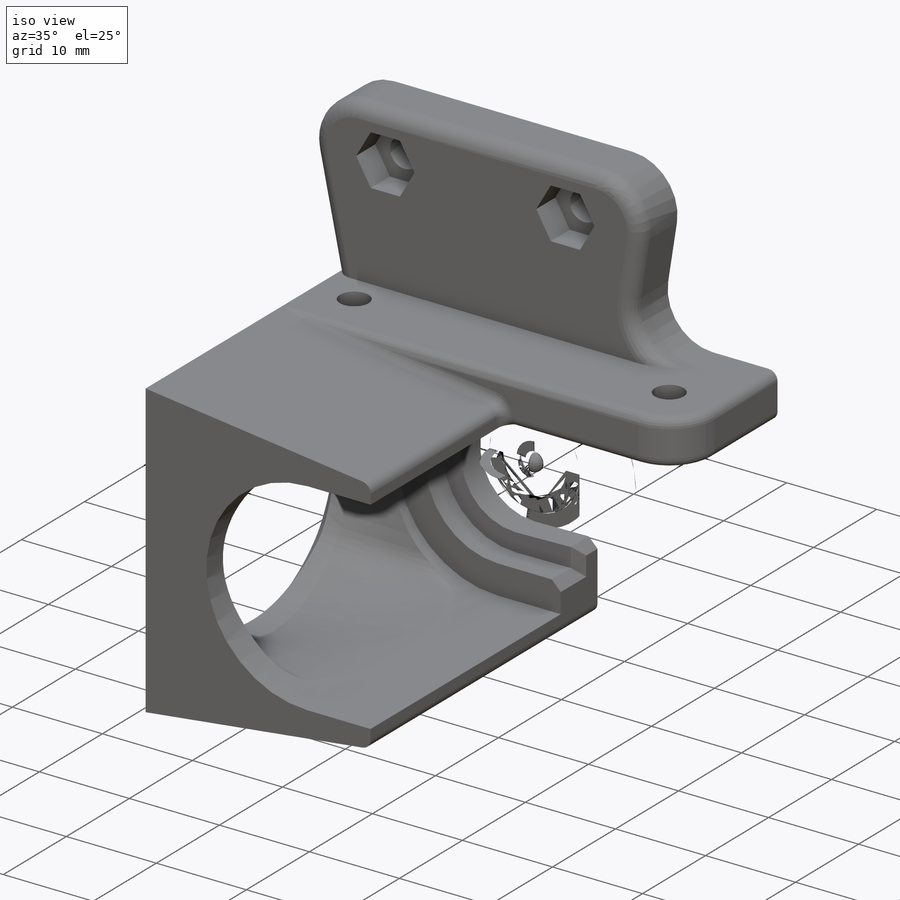
[diagram: iso view]
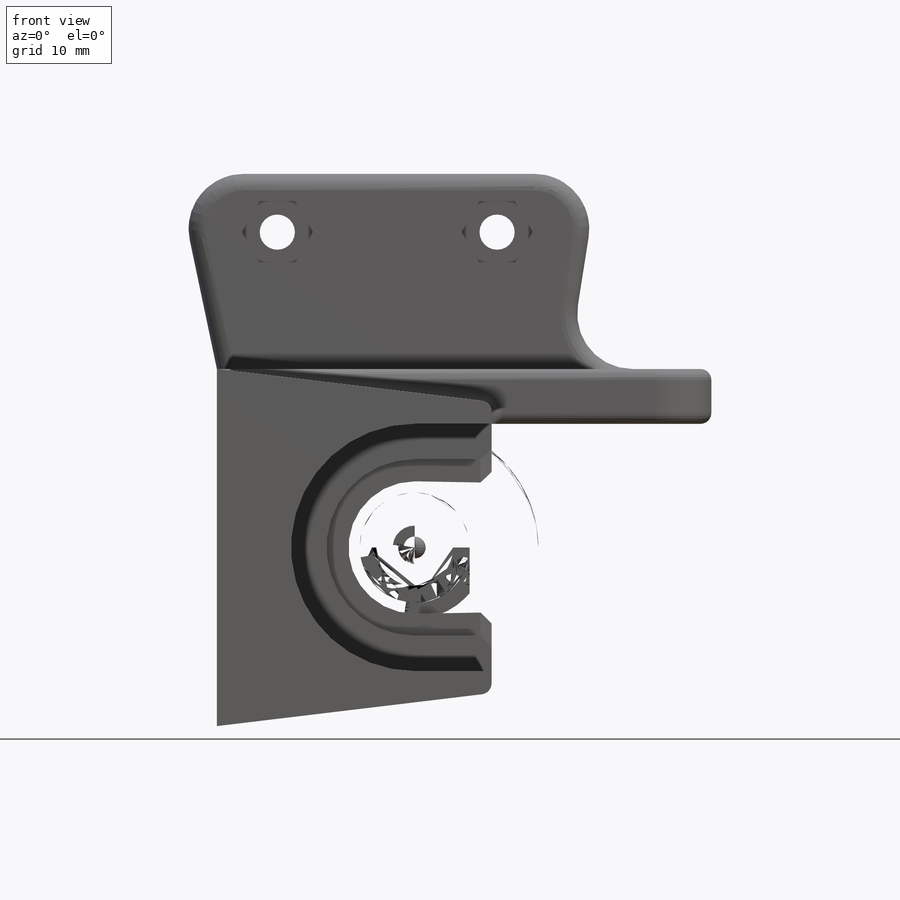
[diagram: front view]
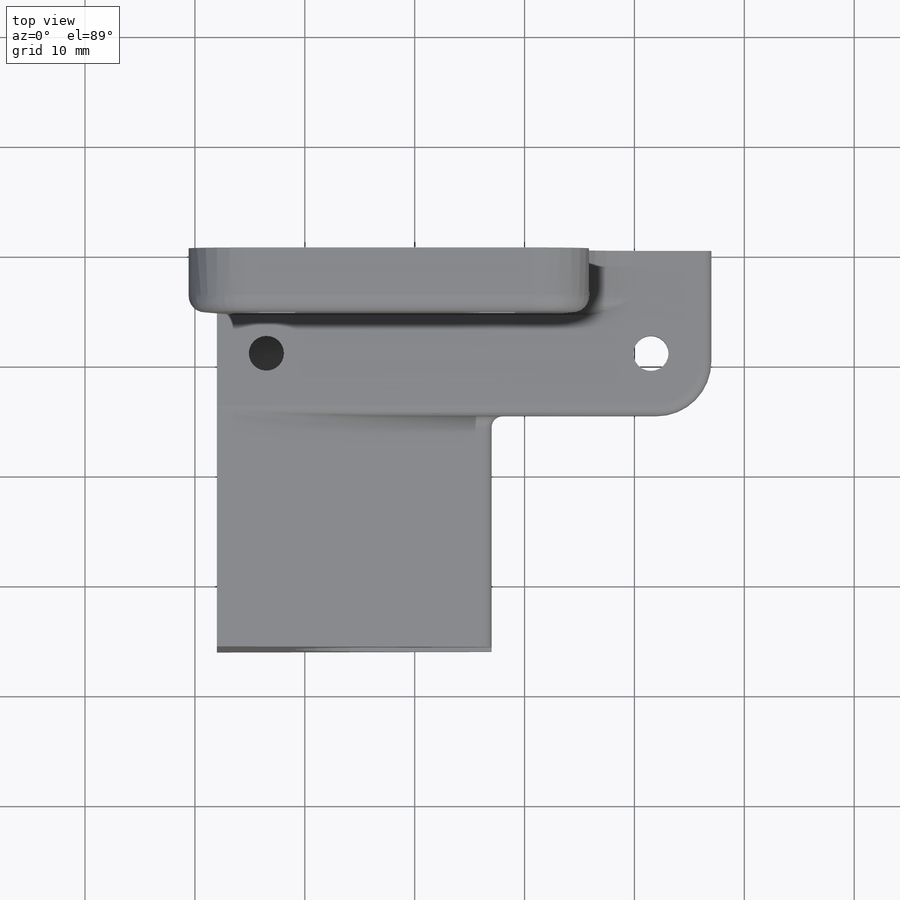
[diagram: top view]
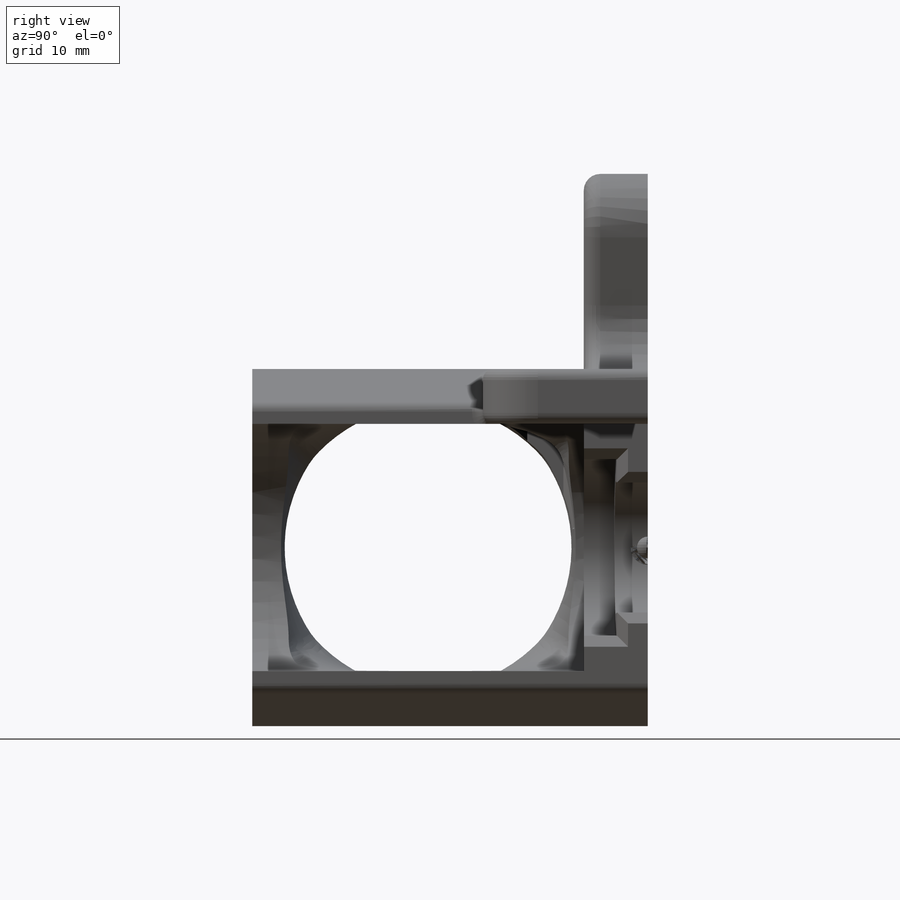
[diagram: right view]
SOLIDWORKS PART (.sldprt)
format: sldprt  version: not decoded by parser v0  size: 1,478,144 bytes
history: native  units: mm
features: sketch x11, extrude x5, chamfer x4, fillet x4, cut_extrude x3, material x1 (+13 scaffold rows collapsed)
feature tree (41):
  scaffold x13  (default folders/planes/origin — collapsed)
  material  "ABS"
  sketch  "Sketch2"  dims[c1.D1=12.05mm c1.D2=16.05mm c1.D3=3.2mm c1.D4=12.05mm c1.D5=3.2mm c1.D6=3.2mm c1.D8=6.0mm c1.D10=5.6mm c2.D6=3.2mm c2.D12=3.2mm c2.D13=22.5mm c2.D7=6.025mm c2.D14=6.025mm c2.D21=2.0mm c2.D4=28.7mm c2.D5=20.0mm c3.D6=12.5mm c3.D7=5.0mm c3.D8=5.0mm c3.D9=5.0mm c4.D7=5.0mm c4.D9=2.0mm c5.D7=6.0mm c5.D10=~3.910987mm c5.D6=5.0mm c5.D8=5.0mm c5.D11=6.0mm c5.D12=2.25mm c6.D6=2.5mm c6.D12=12.5mm c6.D14=6.0mm c6.D15=5.0mm c6.D16=15.0mm c6.D17=27.0mm c7.D14=6.0mm c7.D8=6.0mm c7.D11=6.0mm c7.D7=14.0mm c8.D14=18.0mm c8.D18=2.0mm c8.D19=~5.516136mm c9.D19=70.0deg c9.D20=5.0mm c9.D18=3.0mm c10.D19=1.5mm c10.D20=4.0mm c10.D7=7.0mm c10.D9=2.0mm c10.D16=11.8mm]
  extrude  "Boss-Extrude1"  Depth=2.8mm
  extrude  "Boss-Extrude2"  [1 undecoded]
  sketch  "Sketch2<4>"  dims[D1=5.825mm]
  extrude  "Boss-Extrude3"  [1 undecoded]
  sketch  "Sketch2<5>"  dims[D1=15.0mm]
  extrude  "Boss-Extrude4"  [1 undecoded]
  sketch  "Sketch2<6>"  dims[D1=36.0mm]
  chamfer  "Chamfer1"  Distance=0.5mm Angle=15deg
  chamfer  "Chamfer2"  Distance=1mm Angle=45deg
  fillet  "Fillet4"  Radius=5mm
  sketch  "Sketch3"  dims[c1.D1=26.0mm c1.D2=26.0mm c1.D5=2.8mm c2.D2=20.0mm c2.D3=12.0mm c2.D4=12.0mm]
  fillet  "Fillet6"  Radius=1mm
  fillet  "Fillet7"  Radius=1mm
  sketch  "Sketch4"  dims[D3=2.0mm D1=2.0mm D2=22.5mm D4=18.5mm]
  fillet  "Fillet8"  Radius=1.5mm
  sketch  "Sketch5"  dims[c1.D1=3.2mm c1.D2=2.6mm c1.D3=2.6mm c2.D2=4.5mm c2.D3=35.0mm c2.D4=3.5mm]
  cut_extrude  "Cut-Extrude2"  Depth=6mm
  cut_extrude  "Cut-Extrude3"  [1 undecoded]
  sketch  "Sketch3<4>"  dims[D1=8.0mm]
  chamfer  "Chamfer3"  Distance=1.25mm Angle=45deg
  sketch  "Sketch6"  dims[D1=5.7mm]
  cut_extrude  "Cut-Extrude4"  Depth=2mm
  chamfer  "Chamfer4"  Distance=2mm Angle=45deg
  sketch  "Sketch7"  dims[D1=8.0mm]
  extrude  "Boss-Extrude5"  Depth=0.4mm
  sketch  "3DSketch1"
decode coverage: 22 of 27 modeling features carry decoded parameters
note: ~ marks probable driven/reference dimensions
note: 4 parameter values undecoded
summary: no parameter record found for 4 features
note: suppression state not decoded; provenance and decode notes live in map.json
